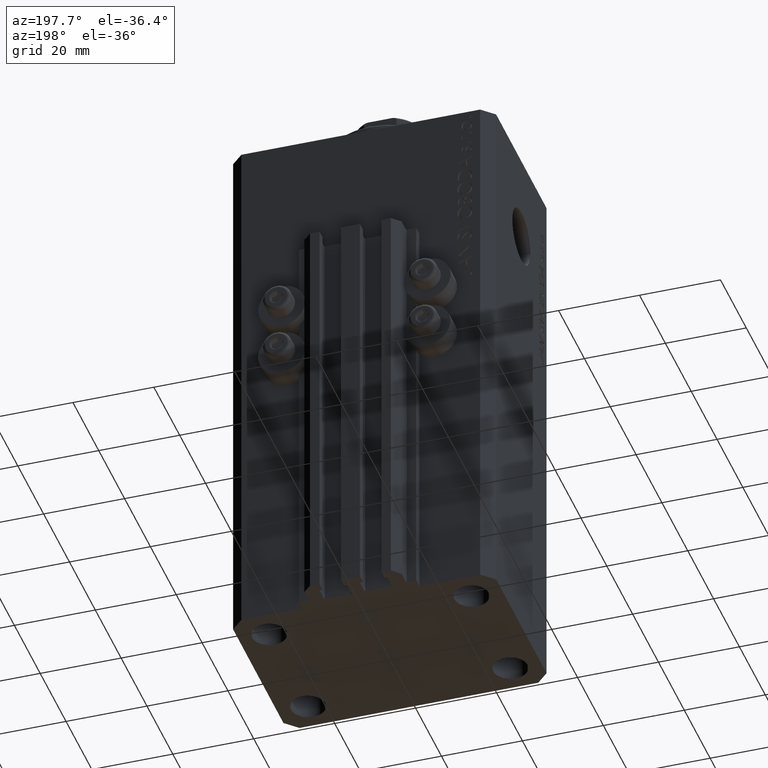
[diagram: clean part render]
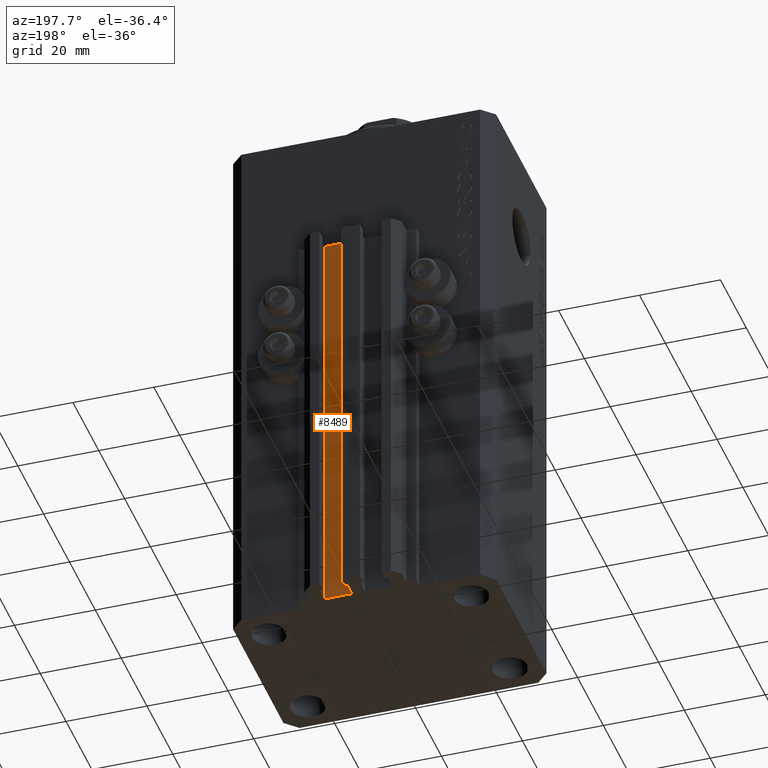
[diagram: same view with one face highlighted and labeled with its STEP entity id]
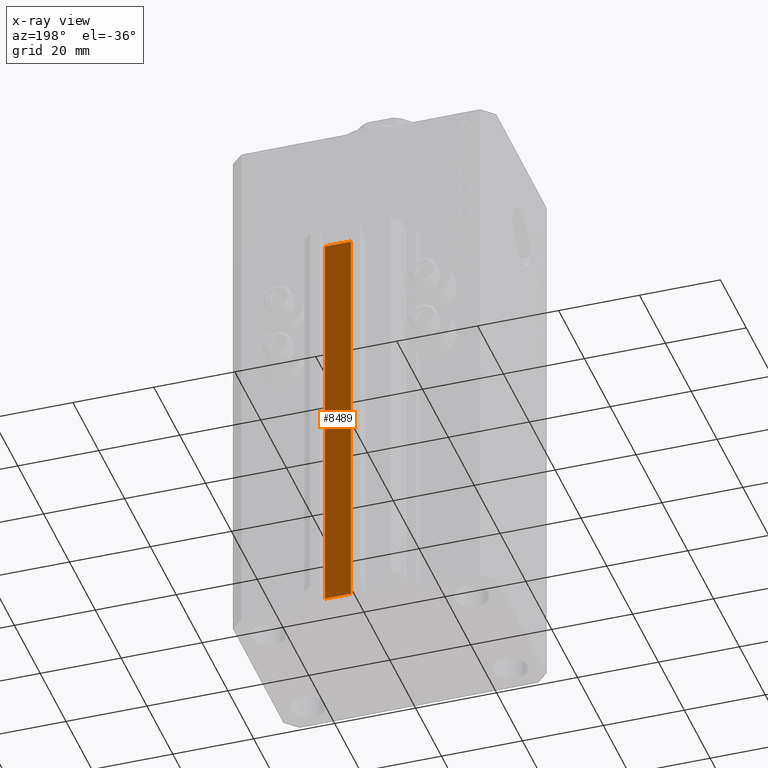
[diagram: x-ray of the same camera — body ghosted, the highlighted face saturated]
A machine part, auxiliary view. The second image highlights one B-rep face of the part: STEP entity #8489.
The next image is the same camera in x-ray: the body ghosted, the highlighted face saturated — about 0% of this face is hidden behind the body in this view.
In plain terms, the highlighted planar face has unit normal (0, 1, 0).
Its self-contained STEP definition (entity closure, byte-faithful):
#958 = VECTOR ( 'NONE', #30236, 1000.000000000000000 ) ;
#4772 = FACE_OUTER_BOUND ( 'NONE', #5758, .T. ) ;
#5758 = EDGE_LOOP ( 'NONE', ( #19162, #22562, #38339, #31109 ) ) ;
#5886 = DIRECTION ( 'NONE',  ( -1.000000000000000000, 0.000000000000000000, 0.000000000000000000 ) ) ;
#6101 = DIRECTION ( 'NONE',  ( 0.000000000000000000, 0.000000000000000000, 1.000000000000000000 ) ) ;
#6860 = AXIS2_PLACEMENT_3D ( 'NONE', #19300, #8128, #22176 ) ;
#8128 = DIRECTION ( 'NONE',  ( 0.000000000000000000, 1.000000000000000000, -0.000000000000000000 ) ) ;
#8489 = ADVANCED_FACE ( 'NONE', ( #4772 ), #33636, .T. ) ;
#9922 = EDGE_CURVE ( 'NONE', #44415, #44683, #46867, .T. ) ;
#12053 = VECTOR ( 'NONE', #32449, 1000.000000000000000 ) ;
#12710 = EDGE_CURVE ( 'NONE', #19679, #44683, #28162, .T. ) ;
#19162 = ORIENTED_EDGE ( 'NONE', *, *, #12710, .F. ) ;
#19300 = CARTESIAN_POINT ( 'NONE',  ( 8.200000000000001066, 24.49999999999949196, -136.0000000000000000 ) ) ;
#19679 = VERTEX_POINT ( 'NONE', #21319 ) ;
#21319 = CARTESIAN_POINT ( 'NONE',  ( 8.200000000000001066, 24.49999999999949196, -33.00000000000000000 ) ) ;
#21699 = CARTESIAN_POINT ( 'NONE',  ( 1.800000000000000933, 24.49999999999949196, -136.0000000000000000 ) ) ;
#22176 = DIRECTION ( 'NONE',  ( 0.000000000000000000, 0.000000000000000000, 1.000000000000000000 ) ) ;
#22562 = ORIENTED_EDGE ( 'NONE', *, *, #24584, .F. ) ;
#23291 = LINE ( 'NONE', #45036, #958 ) ;
#23994 = LINE ( 'NONE', #38580, #26245 ) ;
#24584 = EDGE_CURVE ( 'NONE', #28264, #19679, #23291, .T. ) ;
#26245 = VECTOR ( 'NONE', #5886, 1000.000000000000000 ) ;
#28162 = LINE ( 'NONE', #35564, #12053 ) ;
#28264 = VERTEX_POINT ( 'NONE', #31280 ) ;
#30236 = DIRECTION ( 'NONE',  ( 0.000000000000000000, 0.000000000000000000, 1.000000000000000000 ) ) ;
#31109 = ORIENTED_EDGE ( 'NONE', *, *, #9922, .T. ) ;
#31280 = CARTESIAN_POINT ( 'NONE',  ( 8.200000000000001066, 24.49999999999949196, -136.0000000000000000 ) ) ;
#32449 = DIRECTION ( 'NONE',  ( -1.000000000000000000, 0.000000000000000000, 0.000000000000000000 ) ) ;
#33588 = EDGE_CURVE ( 'NONE', #28264, #44415, #23994, .T. ) ;
#33636 = PLANE ( 'NONE',  #6860 ) ;
#35564 = CARTESIAN_POINT ( 'NONE',  ( 8.200000000000001066, 24.49999999999949196, -33.00000000000000000 ) ) ;
#38339 = ORIENTED_EDGE ( 'NONE', *, *, #33588, .T. ) ;
#38580 = CARTESIAN_POINT ( 'NONE',  ( 8.200000000000001066, 24.49999999999949196, -136.0000000000000000 ) ) ;
#39361 = CARTESIAN_POINT ( 'NONE',  ( 1.800000000000000933, 24.49999999999949196, -33.00000000000000000 ) ) ;
#42584 = CARTESIAN_POINT ( 'NONE',  ( 1.800000000000000933, 24.49999999999949196, -136.0000000000000000 ) ) ;
#44415 = VERTEX_POINT ( 'NONE', #21699 ) ;
#44683 = VERTEX_POINT ( 'NONE', #39361 ) ;
#45036 = CARTESIAN_POINT ( 'NONE',  ( 8.200000000000001066, 24.49999999999949196, -136.0000000000000000 ) ) ;
#45751 = VECTOR ( 'NONE', #6101, 1000.000000000000000 ) ;
#46867 = LINE ( 'NONE', #42584, #45751 ) ;